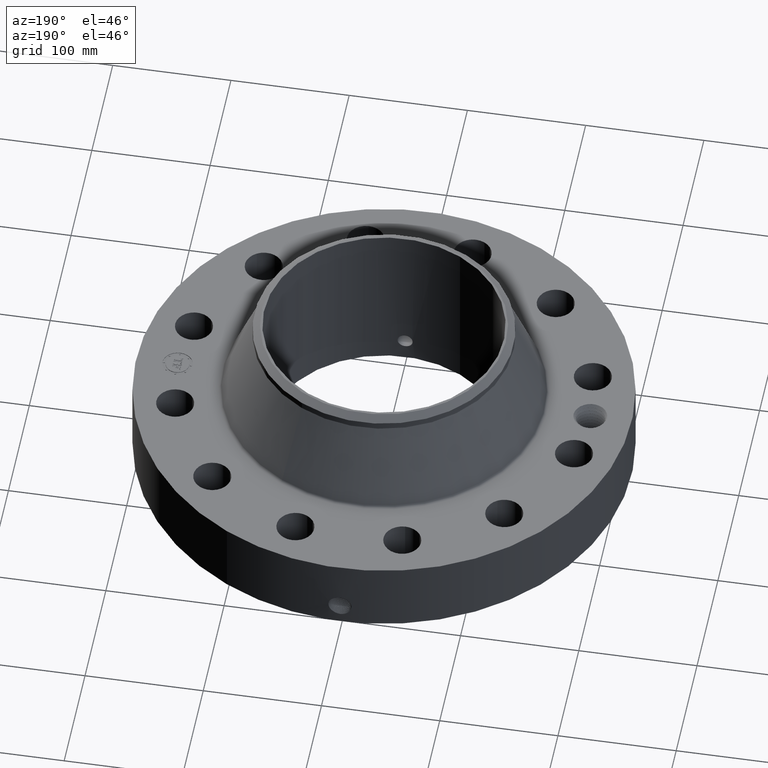
[diagram: clean part render]
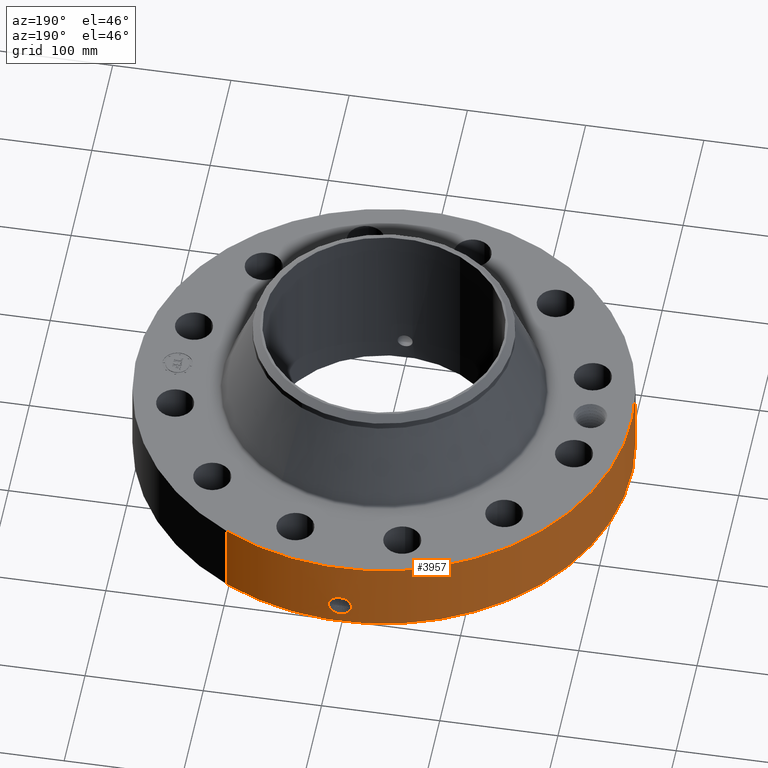
[diagram: same view with one face highlighted and labeled with its STEP entity id]
A machine part, auxiliary view. The second image highlights one B-rep face of the part: STEP entity #3957.
In plain terms, the highlighted cylindrical surface (partial cylindrical patch) has radius 209.55 mm, axis along (0, 0, -1).
Its self-contained STEP definition (entity closure, byte-faithful):
#2927=AXIS2_PLACEMENT_3D('Circle Axis2P3D',#2925,#2926,$) ;
#3843=AXIS2_PLACEMENT_3D('Cylinder Axis2P3D',#3840,#3841,#3842) ;
#3847=AXIS2_PLACEMENT_3D('Circle Axis2P3D',#3845,#3846,$) ;
#2920=CARTESIAN_POINT('Vertex',(3.9552606935,7.24005613562,2.50200000001)) ;
#2922=CARTESIAN_POINT('Vertex',(-3.9552606935,-7.24005613562,2.50200000001)) ;
#2925=CARTESIAN_POINT('Axis2P3D Location',(0.,0.,2.50200000001)) ;
#3840=CARTESIAN_POINT('Axis2P3D Location',(0.,0.,2.78100000001)) ;
#3845=CARTESIAN_POINT('Axis2P3D Location',(0.,0.,0.)) ;
#3849=CARTESIAN_POINT('Vertex',(-3.9552606935,-7.24005613562,0.)) ;
#3851=CARTESIAN_POINT('Vertex',(3.9552606935,7.24005613562,0.)) ;
#3854=CARTESIAN_POINT('Line Origine',(-3.9552606935,-7.24005613562,1.25100000001)) ;
#3859=CARTESIAN_POINT('Line Origine',(3.9552606935,7.24005613562,1.25100000001)) ;
#3871=CARTESIAN_POINT('Control Point',(-0.0585678510429,8.24979210692,1.09923551198)) ;
#3872=CARTESIAN_POINT('Control Point',(-0.0394614616503,8.24992774914,1.10244408938)) ;
#3873=CARTESIAN_POINT('Control Point',(-0.0200905632,8.24999828684,1.10407922609)) ;
#3874=CARTESIAN_POINT('Control Point',(-0.000716273745118,8.24999996894,1.10411849877)) ;
#3875=CARTESIAN_POINT('Vertex',(-0.0585533523424,8.24979246991,1.09923823382)) ;
#3877=CARTESIAN_POINT('Vertex',(-0.000716142201299,8.24999996895,1.10411850921)) ;
#3881=CARTESIAN_POINT('Control Point',(-0.0585532444873,8.2497922106,1.09923764879)) ;
#3882=CARTESIAN_POINT('Control Point',(-0.0977766696017,8.24951382071,1.09434345533)) ;
#3883=CARTESIAN_POINT('Control Point',(-0.13623241498,8.24895066161,1.08230115029)) ;
#3884=CARTESIAN_POINT('Control Point',(-0.171527588296,8.24821667314,1.06401074387)) ;
#3885=CARTESIAN_POINT('Vertex',(-0.171527588296,8.24821667314,1.06401074387)) ;
#3889=CARTESIAN_POINT('Control Point',(-0.0301661140643,8.24994484867,0.341126495021)) ;
#3890=CARTESIAN_POINT('Control Point',(-0.0863158153157,8.24973953599,0.348271732376)) ;
#3891=CARTESIAN_POINT('Control Point',(-0.140867329891,8.24906236224,0.365888114417)) ;
#3892=CARTESIAN_POINT('Control Point',(-0.191063259406,8.24797606693,0.393459217541)) ;
#3893=CARTESIAN_POINT('Control Point',(-0.264021289508,8.24590958243,0.452874482787)) ;
#3894=CARTESIAN_POINT('Control Point',(-0.315833783664,8.24398622899,0.529126030849)) ;
#3895=CARTESIAN_POINT('Control Point',(-0.332862799993,8.24329962614,0.56179915147)) ;
#3896=CARTESIAN_POINT('Control Point',(-0.368222835555,8.24181030804,0.653994331514)) ;
#3897=CARTESIAN_POINT('Control Point',(-0.374342972792,8.2414891385,0.752643149755)) ;
#3898=CARTESIAN_POINT('Control Point',(-0.366209392949,8.24188145368,0.814315413757)) ;
#3899=CARTESIAN_POINT('Control Point',(-0.333005099945,8.24338775333,0.912189368222)) ;
#3900=CARTESIAN_POINT('Control Point',(-0.270471356727,8.24562832209,0.992622589524)) ;
#3901=CARTESIAN_POINT('Control Point',(-0.240874352679,8.24657782915,1.02132243169)) ;
#3902=CARTESIAN_POINT('Control Point',(-0.207549310875,8.24746757555,1.04534383049)) ;
#3903=CARTESIAN_POINT('Control Point',(-0.171527588296,8.24821667314,1.06401074387)) ;
#3904=CARTESIAN_POINT('Vertex',(-0.0301661140643,8.24994484867,0.341126495021)) ;
#3908=CARTESIAN_POINT('Control Point',(-0.0301661140643,8.24994484867,0.341126495021)) ;
#3909=CARTESIAN_POINT('Control Point',(-0.0201047866772,8.24998163815,0.340865650684)) ;
#3910=CARTESIAN_POINT('Control Point',(-0.010038747269,8.25000000335,0.340948525226)) ;
#3911=CARTESIAN_POINT('Control Point',(2.72878355825E-006,8.25000000003,0.341374667804)) ;
#3912=CARTESIAN_POINT('Vertex',(2.72878353656E-006,8.25000000003,0.341374667804)) ;
#3916=CARTESIAN_POINT('Control Point',(0.193376636571,8.2477333539,0.396036260196)) ;
#3917=CARTESIAN_POINT('Control Point',(0.14929649389,8.24876685842,0.371236565552)) ;
#3918=CARTESIAN_POINT('Control Point',(0.101176979301,8.24958173667,0.353501270711)) ;
#3919=CARTESIAN_POINT('Control Point',(0.050828025063,8.24999998322,0.343531604184)) ;
#3920=CARTESIAN_POINT('Control Point',(2.72878354361E-006,8.25000000003,0.341374667804)) ;
#3921=CARTESIAN_POINT('Vertex',(0.193376636571,8.2477333539,0.396036260196)) ;
#3925=CARTESIAN_POINT('Control Point',(0.193376636571,8.2477333539,0.396036260196)) ;
#3926=CARTESIAN_POINT('Control Point',(0.222475223252,8.24705110744,0.412407260681)) ;
#3927=CARTESIAN_POINT('Control Point',(0.249928192166,8.24627904632,0.431663570595)) ;
#3928=CARTESIAN_POINT('Control Point',(0.27533042,8.24545549363,0.453640100806)) ;
#3929=CARTESIAN_POINT('Control Point',(0.342403430296,8.24304477953,0.525122722445)) ;
#3930=CARTESIAN_POINT('Control Point',(0.385376388182,8.24103927396,0.614695699881)) ;
#3931=CARTESIAN_POINT('Control Point',(0.40061658598,8.24025160416,0.679012205666)) ;
#3932=CARTESIAN_POINT('Control Point',(0.401714088633,8.2402431246,0.793261114046)) ;
#3933=CARTESIAN_POINT('Control Point',(0.361790933198,8.2420927086,0.89796877794)) ;
#3934=CARTESIAN_POINT('Control Point',(0.337601275677,8.24316154718,0.939423870605)) ;
#3935=CARTESIAN_POINT('Control Point',(0.268614274621,8.24586286693,1.02362500154)) ;
#3936=CARTESIAN_POINT('Control Point',(0.175473138919,8.24840438007,1.07855120817)) ;
#3937=CARTESIAN_POINT('Control Point',(0.118010586021,8.24948032463,1.09854415707)) ;
#3938=CARTESIAN_POINT('Control Point',(0.0585599688786,8.25000018362,1.10702524197)) ;
#3939=CARTESIAN_POINT('Control Point',(-2.58579355231E-005,8.24999999999,1.10415298433)) ;
#3940=CARTESIAN_POINT('Vertex',(-2.58579355352E-005,8.24999999999,1.10415298433)) ;
#3944=CARTESIAN_POINT('Control Point',(-0.000716142190992,8.24999996895,1.10411850919)) ;
#3945=CARTESIAN_POINT('Control Point',(-0.000371024036216,8.24999999891,1.10413606205)) ;
#3946=CARTESIAN_POINT('Control Point',(-2.58579414795E-005,8.24999999999,1.10415298432)) ;
#2926=DIRECTION('Axis2P3D Direction',(0.,0.,-0.0393700787402)) ;
#3841=DIRECTION('Axis2P3D Direction',(0.,0.,-0.0393700787402)) ;
#3842=DIRECTION('Axis2P3D XDirection',(0.0188750212049,0.0345504945626,0.)) ;
#3846=DIRECTION('Axis2P3D Direction',(0.,0.,-0.0393700787402)) ;
#3855=DIRECTION('Vector Direction',(0.,0.,-0.0393700787402)) ;
#3860=DIRECTION('Vector Direction',(0.,0.,-0.0393700787402)) ;
#3856=VECTOR('Line Direction',#3855,0.0393700787402) ;
#3861=VECTOR('Line Direction',#3860,0.0393700787402) ;
#3865=ORIENTED_EDGE('',*,*,#3853,.F.) ;
#3866=ORIENTED_EDGE('',*,*,#3858,.T.) ;
#3867=ORIENTED_EDGE('',*,*,#2929,.T.) ;
#3868=ORIENTED_EDGE('',*,*,#3863,.F.) ;
#3949=ORIENTED_EDGE('',*,*,#3879,.F.) ;
#3950=ORIENTED_EDGE('',*,*,#3887,.T.) ;
#3951=ORIENTED_EDGE('',*,*,#3906,.F.) ;
#3952=ORIENTED_EDGE('',*,*,#3914,.T.) ;
#3953=ORIENTED_EDGE('',*,*,#3923,.F.) ;
#3954=ORIENTED_EDGE('',*,*,#3942,.T.) ;
#3955=ORIENTED_EDGE('',*,*,#3947,.F.) ;
#3956=FACE_BOUND('',#3948,.T.) ;
#3957=ADVANCED_FACE('PartBody',(#3869,#3956),#3844,.T.) ;
#3870=B_SPLINE_CURVE_WITH_KNOTS('',3,(#3871,#3872,#3873,#3874),.UNSPECIFIED.,.F.,.U.,(4,4),(4.37198958757,6.52139135712),.UNSPECIFIED.) ;
#3880=B_SPLINE_CURVE_WITH_KNOTS('',3,(#3881,#3882,#3883,#3884),.UNSPECIFIED.,.F.,.U.,(4,4),(0.,4.44133166535),.UNSPECIFIED.) ;
#3888=B_SPLINE_CURVE_WITH_KNOTS('',5,(#3889,#3890,#3891,#3892,#3893,#3894,#3895,#3896,#3897,#3898,#3899,#3900,#3901,#3902,#3903),.UNSPECIFIED.,.F.,.U.,(6,3,3,3,6),(0.,9.83723537113,16.4175966425,27.5981716129,35.1527653401),.UNSPECIFIED.) ;
#3907=B_SPLINE_CURVE_WITH_KNOTS('',3,(#3908,#3909,#3910,#3911),.UNSPECIFIED.,.F.,.U.,(4,4),(0.,1.04945167922),.UNSPECIFIED.) ;
#3915=B_SPLINE_CURVE_WITH_KNOTS('',4,(#3916,#3917,#3918,#3919,#3920),.UNSPECIFIED.,.F.,.U.,(5,5),(0.,7.08245046277),.UNSPECIFIED.) ;
#3924=B_SPLINE_CURVE_WITH_KNOTS('',5,(#3925,#3926,#3927,#3928,#3929,#3930,#3931,#3932,#3933,#3934,#3935,#3936,#3937,#3938,#3939),.UNSPECIFIED.,.F.,.U.,(6,3,3,3,6),(0.,5.84416486205,17.0877579247,25.5359310031,36.4868367421),.UNSPECIFIED.) ;
#3943=B_SPLINE_CURVE_WITH_KNOTS('',2,(#3944,#3945,#3946),.UNSPECIFIED.,.F.,.U.,(3,3),(1.04998362998,1.07579111119),.UNSPECIFIED.) ;
#2928=CIRCLE('generated circle',#2927,8.25000000003) ;
#3848=CIRCLE('generated circle',#3847,8.25000000003) ;
#3844=CYLINDRICAL_SURFACE('generated cylinder',#3843,8.25000000003) ;
#2929=EDGE_CURVE('',#2923,#2921,#2928,.T.) ;
#3853=EDGE_CURVE('',#3850,#3852,#3848,.T.) ;
#3858=EDGE_CURVE('',#3850,#2923,#3857,.F.) ;
#3863=EDGE_CURVE('',#3852,#2921,#3862,.F.) ;
#3879=EDGE_CURVE('',#3876,#3878,#3870,.T.) ;
#3887=EDGE_CURVE('',#3876,#3886,#3880,.T.) ;
#3906=EDGE_CURVE('',#3905,#3886,#3888,.T.) ;
#3914=EDGE_CURVE('',#3905,#3913,#3907,.T.) ;
#3923=EDGE_CURVE('',#3922,#3913,#3915,.T.) ;
#3942=EDGE_CURVE('',#3922,#3941,#3924,.T.) ;
#3947=EDGE_CURVE('',#3878,#3941,#3943,.T.) ;
#3864=EDGE_LOOP('',(#3865,#3866,#3867,#3868)) ;
#3948=EDGE_LOOP('',(#3949,#3950,#3951,#3952,#3953,#3954,#3955)) ;
#3869=FACE_OUTER_BOUND('',#3864,.T.) ;
#3857=LINE('Line',#3854,#3856) ;
#3862=LINE('Line',#3859,#3861) ;
#2921=VERTEX_POINT('',#2920) ;
#2923=VERTEX_POINT('',#2922) ;
#3850=VERTEX_POINT('',#3849) ;
#3852=VERTEX_POINT('',#3851) ;
#3876=VERTEX_POINT('',#3875) ;
#3878=VERTEX_POINT('',#3877) ;
#3886=VERTEX_POINT('',#3885) ;
#3905=VERTEX_POINT('',#3904) ;
#3913=VERTEX_POINT('',#3912) ;
#3922=VERTEX_POINT('',#3921) ;
#3941=VERTEX_POINT('',#3940) ;